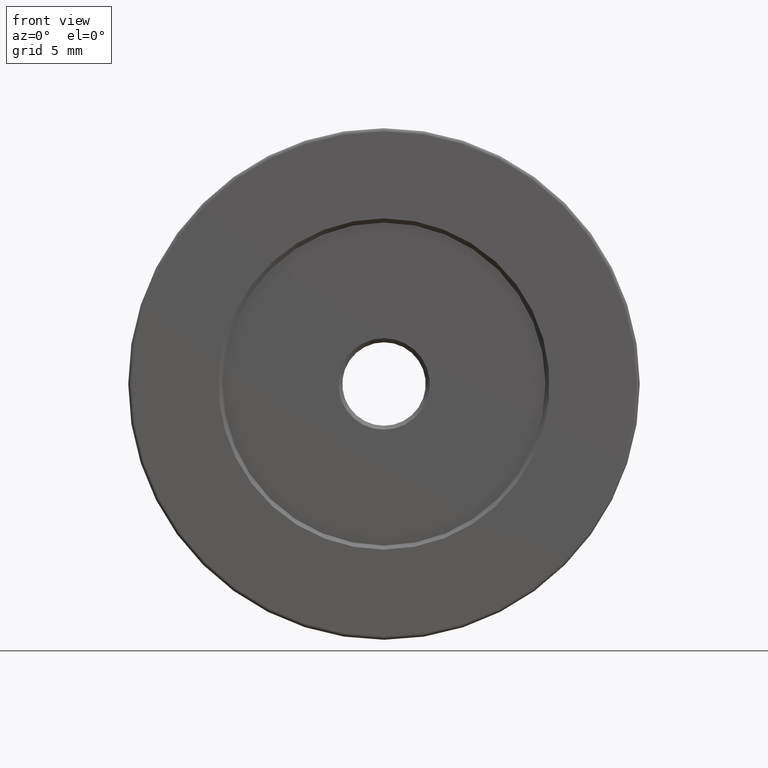
[diagram: clean part render]
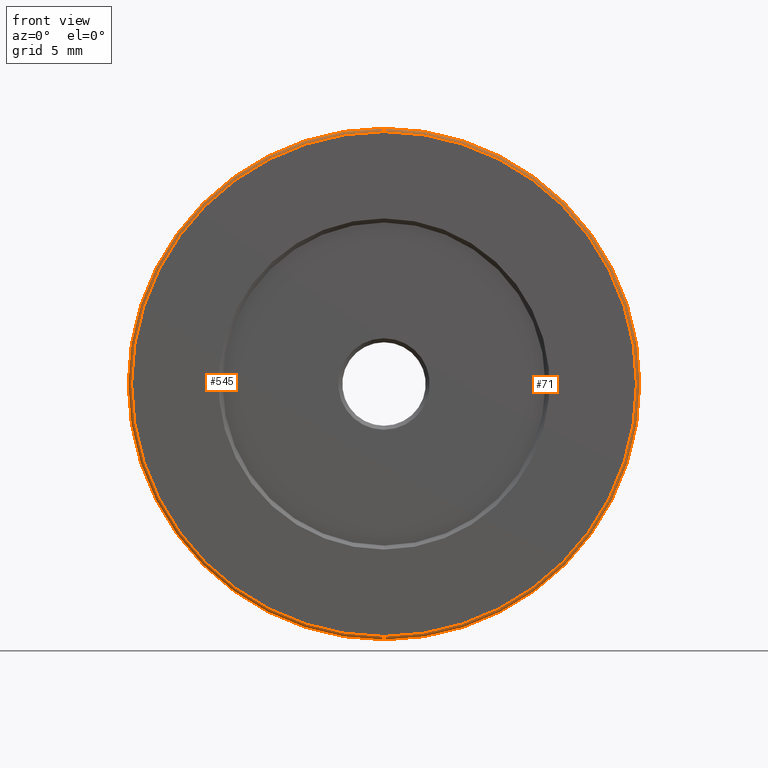
[diagram: same view with one multi-face feature highlighted, each face labeled with its STEP entity id]
A machine part, front view. The highlighted faces form ONE feature: a constant-radius fillet chain: 2 tangent blend faces with common blend radius 0.25 mm. The faces share edges in the B-rep.
Their STEP definitions:
[1] entity #545 (Torus):
#15 = TOROIDAL_SURFACE ( 'NONE', #255, 18.75000000000000000, 0.2500000000000000000 ) ;
#17 = CARTESIAN_POINT ( 'NONE',  ( -7.546808913101045846, -6.893595127302727832, 19.25000000000000000 ) ) ;
#31 = ORIENTED_EDGE ( 'NONE', *, *, #139, .F. ) ;
#33 = DIRECTION ( 'NONE',  ( 0.000000000000000000, 1.000000000000000000, 0.000000000000000000 ) ) ;
#37 = CIRCLE ( 'NONE', #414, 18.74999999999999645 ) ;
#41 = CARTESIAN_POINT ( 'NONE',  ( -7.546808913101048510, -6.893595127302727832, 38.00000000000000000 ) ) ;
#60 = DIRECTION ( 'NONE',  ( 0.000000000000000000, 0.000000000000000000, -1.000000000000000000 ) ) ;
#68 = VERTEX_POINT ( 'NONE', #408 ) ;
#83 = CIRCLE ( 'NONE', #590, 18.99999999999999645 ) ;
#112 = CARTESIAN_POINT ( 'NONE',  ( -7.546808913101045846, -6.643595127302727832, 19.25000000000000000 ) ) ;
#123 = FACE_OUTER_BOUND ( 'NONE', #356, .T. ) ;
#139 = EDGE_CURVE ( 'NONE', #331, #274, #37, .T. ) ;
#169 = ORIENTED_EDGE ( 'NONE', *, *, #196, .T. ) ;
#196 = EDGE_CURVE ( 'NONE', #331, #547, #427, .T. ) ;
#197 = DIRECTION ( 'NONE',  ( 1.000000000000000000, -0.000000000000000000, 1.224646799147353207E-16 ) ) ;
#213 = EDGE_CURVE ( 'NONE', #274, #68, #291, .T. ) ;
#218 = DIRECTION ( 'NONE',  ( 0.000000000000000000, 0.000000000000000000, 1.000000000000000000 ) ) ;
#230 = DIRECTION ( 'NONE',  ( -1.000000000000000000, 0.000000000000000000, 0.000000000000000000 ) ) ;
#231 = ORIENTED_EDGE ( 'NONE', *, *, #213, .F. ) ;
#237 = CARTESIAN_POINT ( 'NONE',  ( -7.546808913101048510, -6.893595127302727832, 56.74999999999999289 ) ) ;
#255 = AXIS2_PLACEMENT_3D ( 'NONE', #264, #33, #218 ) ;
#264 = CARTESIAN_POINT ( 'NONE',  ( -7.546808913101048510, -6.643595127302727832, 38.00000000000000000 ) ) ;
#273 = DIRECTION ( 'NONE',  ( 0.000000000000000000, 0.000000000000000000, 1.000000000000000000 ) ) ;
#274 = VERTEX_POINT ( 'NONE', #17 ) ;
#282 = DIRECTION ( 'NONE',  ( 0.000000000000000000, 0.000000000000000000, 1.000000000000000000 ) ) ;
#284 = EDGE_CURVE ( 'NONE', #68, #547, #83, .T. ) ;
#291 = CIRCLE ( 'NONE', #546, 0.2500000000000002220 ) ;
#331 = VERTEX_POINT ( 'NONE', #237 ) ;
#332 = DIRECTION ( 'NONE',  ( -0.000000000000000000, -1.000000000000000000, -0.000000000000000000 ) ) ;
#351 = CARTESIAN_POINT ( 'NONE',  ( -7.546808913101045846, -6.643595127302727832, 56.99999999999999289 ) ) ;
#356 = EDGE_LOOP ( 'NONE', ( #231, #31, #169, #564 ) ) ;
#374 = CARTESIAN_POINT ( 'NONE',  ( -7.546808913101048510, -6.643595127302727832, 56.74999999999999289 ) ) ;
#408 = CARTESIAN_POINT ( 'NONE',  ( -7.546808913101048510, -6.643595127302727832, 19.00000000000000000 ) ) ;
#414 = AXIS2_PLACEMENT_3D ( 'NONE', #41, #332, #273 ) ;
#427 = CIRCLE ( 'NONE', #464, 0.2500000000000002220 ) ;
#464 = AXIS2_PLACEMENT_3D ( 'NONE', #374, #230, #282 ) ;
#483 = DIRECTION ( 'NONE',  ( 0.000000000000000000, 1.000000000000000000, 0.000000000000000000 ) ) ;
#526 = CARTESIAN_POINT ( 'NONE',  ( -7.546808913101048510, -6.643595127302727832, 38.00000000000000000 ) ) ;
#530 = DIRECTION ( 'NONE',  ( 0.000000000000000000, 0.000000000000000000, 1.000000000000000000 ) ) ;
#545 = ADVANCED_FACE ( 'NONE', ( #123 ), #15, .T. ) ;
#546 = AXIS2_PLACEMENT_3D ( 'NONE', #112, #197, #60 ) ;
#547 = VERTEX_POINT ( 'NONE', #351 ) ;
#564 = ORIENTED_EDGE ( 'NONE', *, *, #284, .F. ) ;
#590 = AXIS2_PLACEMENT_3D ( 'NONE', #526, #483, #530 ) ;
[2] entity #71 (Torus):
#2 = ORIENTED_EDGE ( 'NONE', *, *, #213, .T. ) ;
#6 = CARTESIAN_POINT ( 'NONE',  ( -7.546808913101048510, -6.893595127302727832, 38.00000000000000000 ) ) ;
#17 = CARTESIAN_POINT ( 'NONE',  ( -7.546808913101045846, -6.893595127302727832, 19.25000000000000000 ) ) ;
#47 = AXIS2_PLACEMENT_3D ( 'NONE', #558, #473, #363 ) ;
#60 = DIRECTION ( 'NONE',  ( 0.000000000000000000, 0.000000000000000000, -1.000000000000000000 ) ) ;
#68 = VERTEX_POINT ( 'NONE', #408 ) ;
#71 = ADVANCED_FACE ( 'NONE', ( #417 ), #167, .T. ) ;
#97 = DIRECTION ( 'NONE',  ( -0.000000000000000000, -1.000000000000000000, -0.000000000000000000 ) ) ;
#112 = CARTESIAN_POINT ( 'NONE',  ( -7.546808913101045846, -6.643595127302727832, 19.25000000000000000 ) ) ;
#119 = CIRCLE ( 'NONE', #372, 18.99999999999999645 ) ;
#154 = ORIENTED_EDGE ( 'NONE', *, *, #406, .F. ) ;
#167 = TOROIDAL_SURFACE ( 'NONE', #47, 18.75000000000000000, 0.2500000000000000000 ) ;
#190 = AXIS2_PLACEMENT_3D ( 'NONE', #6, #97, #225 ) ;
#196 = EDGE_CURVE ( 'NONE', #331, #547, #427, .T. ) ;
#197 = DIRECTION ( 'NONE',  ( 1.000000000000000000, -0.000000000000000000, 1.224646799147353207E-16 ) ) ;
#213 = EDGE_CURVE ( 'NONE', #274, #68, #291, .T. ) ;
#225 = DIRECTION ( 'NONE',  ( 0.000000000000000000, 0.000000000000000000, 1.000000000000000000 ) ) ;
#230 = DIRECTION ( 'NONE',  ( -1.000000000000000000, 0.000000000000000000, 0.000000000000000000 ) ) ;
#237 = CARTESIAN_POINT ( 'NONE',  ( -7.546808913101048510, -6.893595127302727832, 56.74999999999999289 ) ) ;
#242 = DIRECTION ( 'NONE',  ( 0.000000000000000000, 0.000000000000000000, 1.000000000000000000 ) ) ;
#244 = CARTESIAN_POINT ( 'NONE',  ( -7.546808913101048510, -6.643595127302727832, 38.00000000000000000 ) ) ;
#248 = DIRECTION ( 'NONE',  ( 0.000000000000000000, 1.000000000000000000, 0.000000000000000000 ) ) ;
#274 = VERTEX_POINT ( 'NONE', #17 ) ;
#282 = DIRECTION ( 'NONE',  ( 0.000000000000000000, 0.000000000000000000, 1.000000000000000000 ) ) ;
#291 = CIRCLE ( 'NONE', #546, 0.2500000000000002220 ) ;
#313 = EDGE_LOOP ( 'NONE', ( #492, #2, #154, #465 ) ) ;
#331 = VERTEX_POINT ( 'NONE', #237 ) ;
#351 = CARTESIAN_POINT ( 'NONE',  ( -7.546808913101045846, -6.643595127302727832, 56.99999999999999289 ) ) ;
#363 = DIRECTION ( 'NONE',  ( 0.000000000000000000, 0.000000000000000000, 1.000000000000000000 ) ) ;
#372 = AXIS2_PLACEMENT_3D ( 'NONE', #244, #248, #242 ) ;
#374 = CARTESIAN_POINT ( 'NONE',  ( -7.546808913101048510, -6.643595127302727832, 56.74999999999999289 ) ) ;
#406 = EDGE_CURVE ( 'NONE', #547, #68, #119, .T. ) ;
#408 = CARTESIAN_POINT ( 'NONE',  ( -7.546808913101048510, -6.643595127302727832, 19.00000000000000000 ) ) ;
#417 = FACE_OUTER_BOUND ( 'NONE', #313, .T. ) ;
#427 = CIRCLE ( 'NONE', #464, 0.2500000000000002220 ) ;
#464 = AXIS2_PLACEMENT_3D ( 'NONE', #374, #230, #282 ) ;
#465 = ORIENTED_EDGE ( 'NONE', *, *, #196, .F. ) ;
#473 = DIRECTION ( 'NONE',  ( 0.000000000000000000, 1.000000000000000000, 0.000000000000000000 ) ) ;
#492 = ORIENTED_EDGE ( 'NONE', *, *, #563, .F. ) ;
#546 = AXIS2_PLACEMENT_3D ( 'NONE', #112, #197, #60 ) ;
#547 = VERTEX_POINT ( 'NONE', #351 ) ;
#558 = CARTESIAN_POINT ( 'NONE',  ( -7.546808913101048510, -6.643595127302727832, 38.00000000000000000 ) ) ;
#563 = EDGE_CURVE ( 'NONE', #274, #331, #608, .T. ) ;
#608 = CIRCLE ( 'NONE', #190, 18.74999999999999645 ) ;